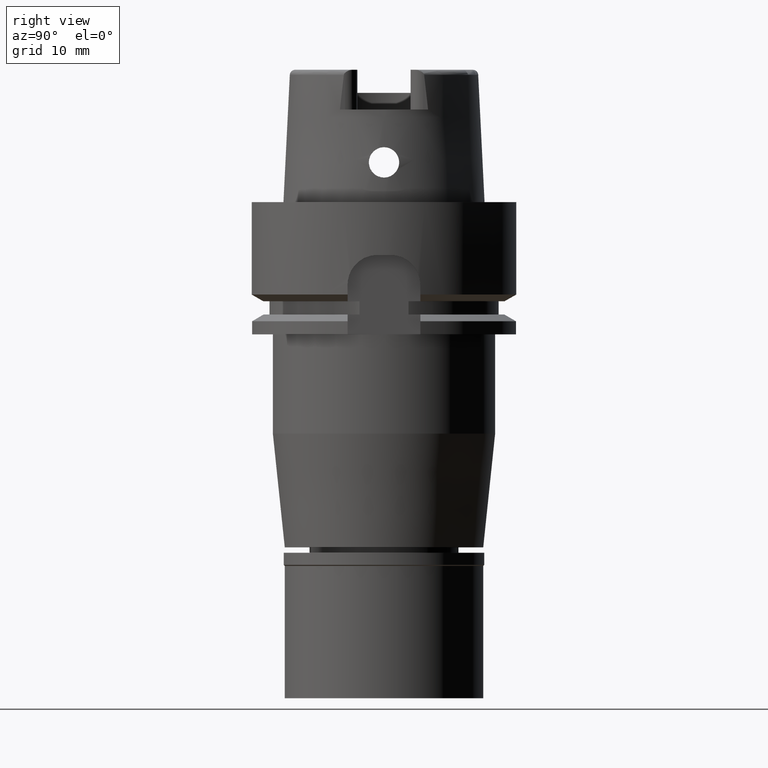
[diagram: clean part render]
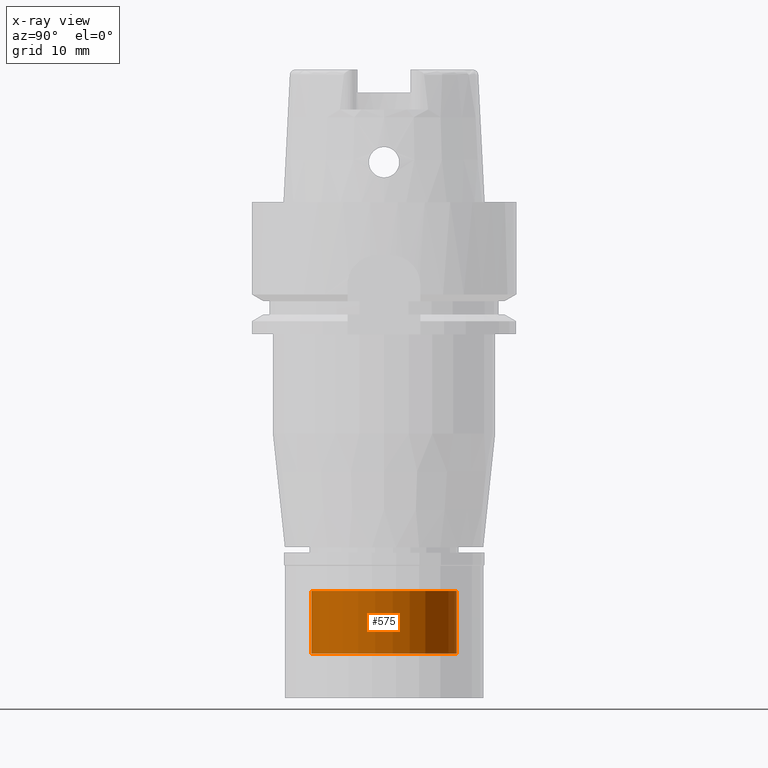
[diagram: x-ray — body ghosted, one internal face saturated and labeled with its STEP entity id]
A machine part, right view, then the same camera in x-ray: the body is ghosted and one INTERNAL B-rep face — a face not visible from any outside direction — is saturated and labeled: STEP entity #575.
In plain terms, the highlighted cylindrical surface (partial cylindrical patch) has radius 11 mm, axis along (0, 0, 1).
Its self-contained STEP definition (entity closure, byte-faithful):
#178 = VECTOR ( 'NONE', #843, 1000.000000000000000 ) ;
#416 = VERTEX_POINT ( 'NONE', #4346 ) ;
#518 = CIRCLE ( 'NONE', #5036, 11.00000000000000000 ) ;
#530 = CARTESIAN_POINT ( 'NONE',  ( 0.0000000000000000000, 0.0000000000000000000, -68.29999999999999716 ) ) ;
#575 = ADVANCED_FACE ( 'NONE', ( #2589 ), #2282, .T. ) ;
#606 = VECTOR ( 'NONE', #2970, 1000.000000000000000 ) ;
#703 = CARTESIAN_POINT ( 'NONE',  ( 0.0000000000000000000, 11.00000000000000000, -58.79999999999999716 ) ) ;
#840 = CARTESIAN_POINT ( 'NONE',  ( 0.0000000000000000000, -11.00000000000000000, -58.79999999999999716 ) ) ;
#843 = DIRECTION ( 'NONE',  ( 0.0000000000000000000, 0.0000000000000000000, -1.000000000000000000 ) ) ;
#900 = CARTESIAN_POINT ( 'NONE',  ( 0.0000000000000000000, -11.00000000000000000, -68.29999999999999716 ) ) ;
#1059 = VERTEX_POINT ( 'NONE', #703 ) ;
#1292 = AXIS2_PLACEMENT_3D ( 'NONE', #3891, #1418, #2259 ) ;
#1418 = DIRECTION ( 'NONE',  ( 0.0000000000000000000, 0.0000000000000000000, 1.000000000000000000 ) ) ;
#1590 = EDGE_CURVE ( 'NONE', #416, #2635, #4937, .T. ) ;
#1623 = LINE ( 'NONE', #4187, #178 ) ;
#1776 = CARTESIAN_POINT ( 'NONE',  ( 0.0000000000000000000, 11.00000000000000000, -68.29999999999999716 ) ) ;
#1893 = EDGE_CURVE ( 'NONE', #2635, #3918, #518, .T. ) ;
#2090 = DIRECTION ( 'NONE',  ( 0.0000000000000000000, 1.000000000000000000, 0.0000000000000000000 ) ) ;
#2130 = DIRECTION ( 'NONE',  ( 0.0000000000000000000, 0.0000000000000000000, 1.000000000000000000 ) ) ;
#2259 = DIRECTION ( 'NONE',  ( 0.0000000000000000000, 1.000000000000000000, 0.0000000000000000000 ) ) ;
#2282 = CYLINDRICAL_SURFACE ( 'NONE', #1292, 11.00000000000000000 ) ;
#2437 = DIRECTION ( 'NONE',  ( 0.0000000000000000000, 0.0000000000000000000, -1.000000000000000000 ) ) ;
#2522 = CARTESIAN_POINT ( 'NONE',  ( 0.0000000000000000000, 0.0000000000000000000, -58.79999999999999716 ) ) ;
#2532 = EDGE_CURVE ( 'NONE', #1059, #3918, #1623, .T. ) ;
#2589 = FACE_OUTER_BOUND ( 'NONE', #3952, .T. ) ;
#2635 = VERTEX_POINT ( 'NONE', #900 ) ;
#2970 = DIRECTION ( 'NONE',  ( 0.0000000000000000000, 0.0000000000000000000, -1.000000000000000000 ) ) ;
#3104 = EDGE_CURVE ( 'NONE', #1059, #416, #5212, .T. ) ;
#3140 = AXIS2_PLACEMENT_3D ( 'NONE', #2522, #2437, #2090 ) ;
#3144 = ORIENTED_EDGE ( 'NONE', *, *, #1590, .T. ) ;
#3545 = ORIENTED_EDGE ( 'NONE', *, *, #3104, .T. ) ;
#3891 = CARTESIAN_POINT ( 'NONE',  ( 0.0000000000000000000, 0.0000000000000000000, -72.71500000000000341 ) ) ;
#3918 = VERTEX_POINT ( 'NONE', #1776 ) ;
#3952 = EDGE_LOOP ( 'NONE', ( #3545, #3144, #4450, #4441 ) ) ;
#4187 = CARTESIAN_POINT ( 'NONE',  ( 0.0000000000000000000, 11.00000000000000000, -58.79999999999999716 ) ) ;
#4346 = CARTESIAN_POINT ( 'NONE',  ( 0.0000000000000000000, -11.00000000000000000, -58.79999999999999716 ) ) ;
#4441 = ORIENTED_EDGE ( 'NONE', *, *, #2532, .F. ) ;
#4450 = ORIENTED_EDGE ( 'NONE', *, *, #1893, .T. ) ;
#4569 = DIRECTION ( 'NONE',  ( 0.0000000000000000000, -1.000000000000000000, 0.0000000000000000000 ) ) ;
#4937 = LINE ( 'NONE', #840, #606 ) ;
#5036 = AXIS2_PLACEMENT_3D ( 'NONE', #530, #2130, #4569 ) ;
#5212 = CIRCLE ( 'NONE', #3140, 11.00000000000000000 ) ;